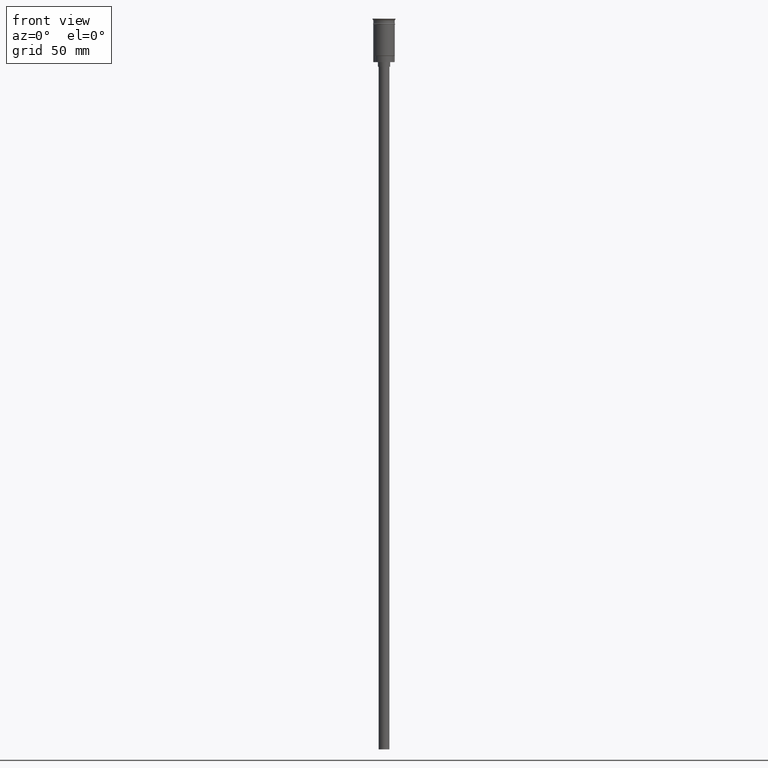
[diagram: clean part render]
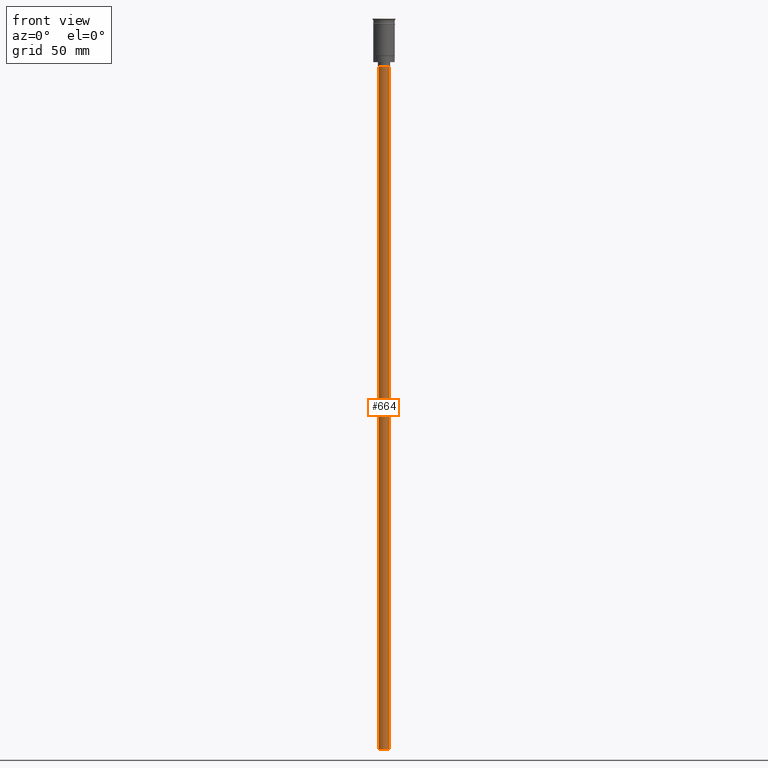
[diagram: same view with one face highlighted and labeled with its STEP entity id]
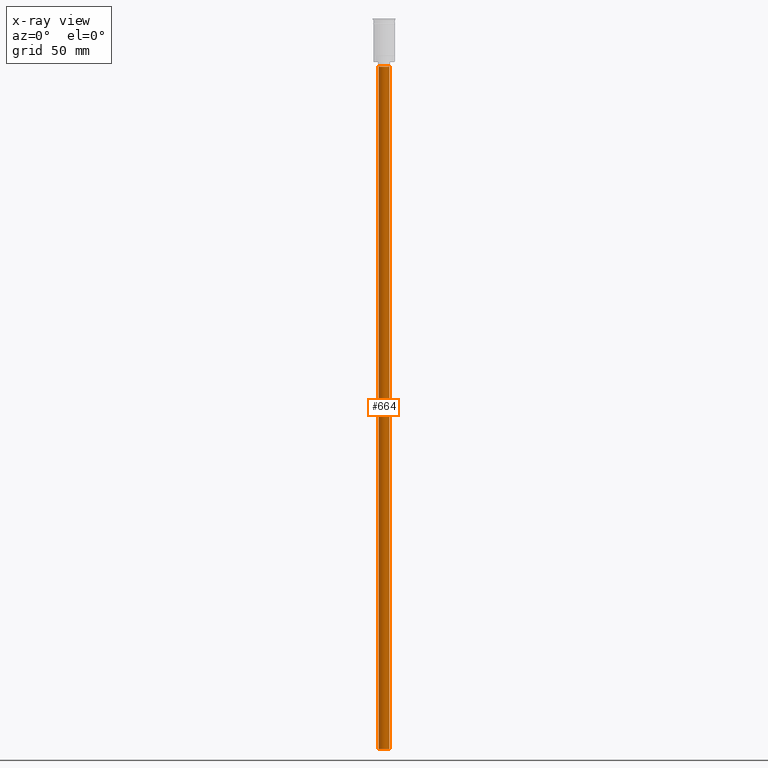
[diagram: x-ray of the same camera — body ghosted, the highlighted face saturated]
A machine part, front view. The second image highlights one B-rep face of the part: STEP entity #664.
The next image is the same camera in x-ray: the body ghosted, the highlighted face saturated — about 0% of this face is hidden behind the body in this view.
In plain terms, the highlighted cylindrical surface (edge-blend (fillet) strip) has radius 3.5 mm, axis along (-0, -0, 1).
Its self-contained STEP definition (entity closure, byte-faithful):
#30 = LINE ( 'NONE', #869, #1344 ) ;
#69 = ORIENTED_EDGE ( 'NONE', *, *, #1423, .T. ) ;
#76 = DIRECTION ( 'NONE',  ( -1.000000000000000000, 0.000000000000000000, 0.000000000000000000 ) ) ;
#130 = DIRECTION ( 'NONE',  ( -0.000000000000000000, -0.000000000000000000, 1.000000000000000000 ) ) ;
#275 = AXIS2_PLACEMENT_3D ( 'NONE', #764, #1159, #920 ) ;
#296 = CARTESIAN_POINT ( 'NONE',  ( -3.500000000000000444, 4.286263797015737088E-16, -478.5000000000000568 ) ) ;
#427 = CYLINDRICAL_SURFACE ( 'NONE', #275, 3.500000000000000444 ) ;
#489 = EDGE_CURVE ( 'NONE', #540, #1127, #1321, .T. ) ;
#522 = LINE ( 'NONE', #998, #641 ) ;
#537 = CARTESIAN_POINT ( 'NONE',  ( -3.500000000000000444, 4.286263797015737088E-16, -31.50000000000000000 ) ) ;
#540 = VERTEX_POINT ( 'NONE', #744 ) ;
#555 = ORIENTED_EDGE ( 'NONE', *, *, #911, .F. ) ;
#591 = EDGE_CURVE ( 'NONE', #752, #1582, #1387, .T. ) ;
#605 = DIRECTION ( 'NONE',  ( -1.000000000000000000, 0.000000000000000000, 0.000000000000000000 ) ) ;
#621 = CARTESIAN_POINT ( 'NONE',  ( 0.000000000000000000, 0.000000000000000000, -31.50000000000000000 ) ) ;
#629 = DIRECTION ( 'NONE',  ( -0.000000000000000000, -0.000000000000000000, 1.000000000000000000 ) ) ;
#641 = VECTOR ( 'NONE', #130, 1000.000000000000000 ) ;
#664 = ADVANCED_FACE ( 'NONE', ( #1265 ), #427, .T. ) ;
#744 = CARTESIAN_POINT ( 'NONE',  ( 3.500000000000000444, 0.000000000000000000, -478.5000000000000568 ) ) ;
#752 = VERTEX_POINT ( 'NONE', #1381 ) ;
#764 = CARTESIAN_POINT ( 'NONE',  ( 0.000000000000000000, 0.000000000000000000, -478.5000000000000568 ) ) ;
#795 = AXIS2_PLACEMENT_3D ( 'NONE', #621, #1119, #605 ) ;
#869 = CARTESIAN_POINT ( 'NONE',  ( 3.500000000000000444, 0.000000000000000000, -478.5000000000000568 ) ) ;
#911 = EDGE_CURVE ( 'NONE', #1127, #1582, #522, .T. ) ;
#920 = DIRECTION ( 'NONE',  ( 1.000000000000000000, 0.000000000000000000, 0.000000000000000000 ) ) ;
#998 = CARTESIAN_POINT ( 'NONE',  ( -3.500000000000000444, 4.286263797015737088E-16, -478.5000000000000568 ) ) ;
#1096 = ORIENTED_EDGE ( 'NONE', *, *, #591, .T. ) ;
#1119 = DIRECTION ( 'NONE',  ( 0.000000000000000000, 0.000000000000000000, -1.000000000000000000 ) ) ;
#1127 = VERTEX_POINT ( 'NONE', #296 ) ;
#1159 = DIRECTION ( 'NONE',  ( -0.000000000000000000, -0.000000000000000000, 1.000000000000000000 ) ) ;
#1160 = EDGE_LOOP ( 'NONE', ( #555, #1556, #69, #1096 ) ) ;
#1182 = AXIS2_PLACEMENT_3D ( 'NONE', #1432, #1447, #76 ) ;
#1265 = FACE_OUTER_BOUND ( 'NONE', #1160, .T. ) ;
#1321 = CIRCLE ( 'NONE', #1182, 3.500000000000000444 ) ;
#1344 = VECTOR ( 'NONE', #629, 1000.000000000000000 ) ;
#1381 = CARTESIAN_POINT ( 'NONE',  ( 3.500000000000000444, 0.000000000000000000, -31.50000000000000000 ) ) ;
#1387 = CIRCLE ( 'NONE', #795, 3.500000000000000444 ) ;
#1423 = EDGE_CURVE ( 'NONE', #540, #752, #30, .T. ) ;
#1432 = CARTESIAN_POINT ( 'NONE',  ( 0.000000000000000000, 0.000000000000000000, -478.5000000000000568 ) ) ;
#1447 = DIRECTION ( 'NONE',  ( 0.000000000000000000, 0.000000000000000000, -1.000000000000000000 ) ) ;
#1556 = ORIENTED_EDGE ( 'NONE', *, *, #489, .F. ) ;
#1582 = VERTEX_POINT ( 'NONE', #537 ) ;